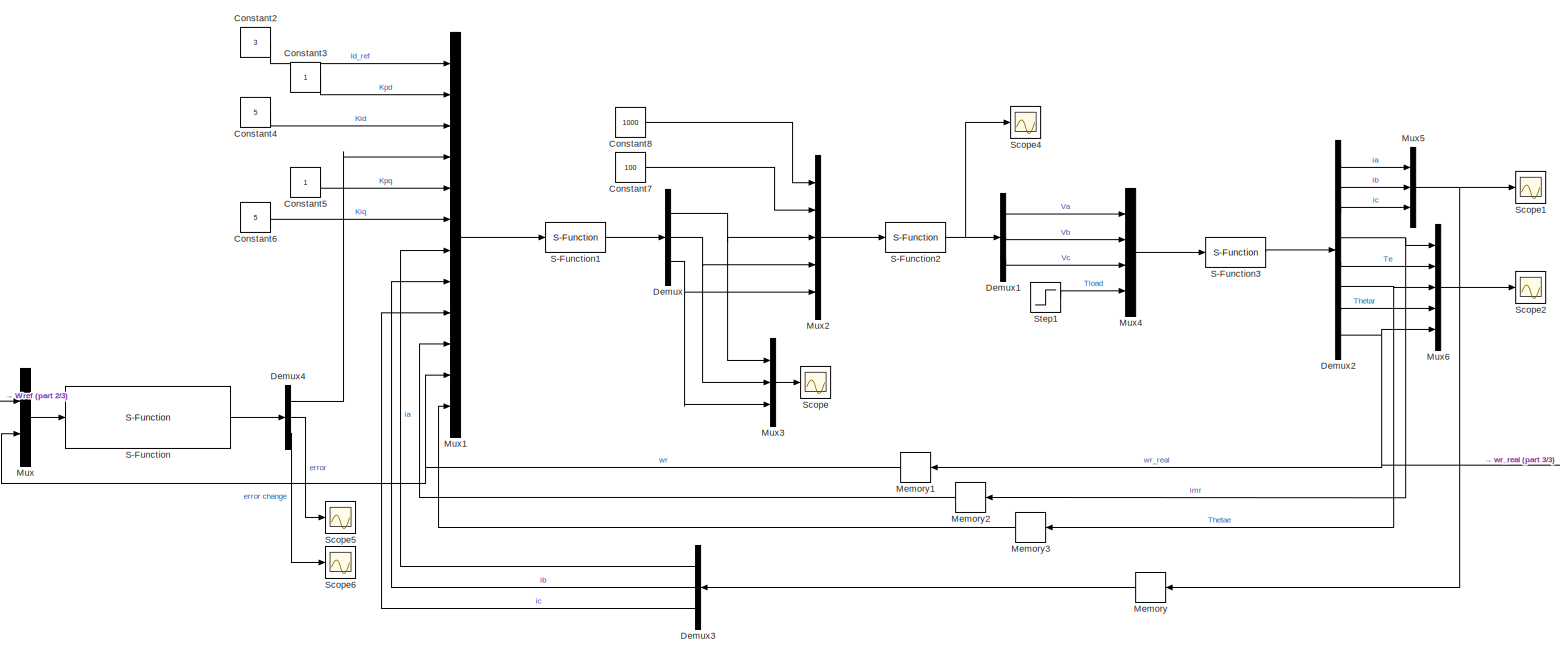
[diagram: root canvas - part 1/3, most of the canvas]
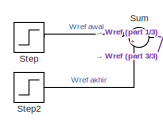
[diagram: root canvas - part 2/3, middle left region]
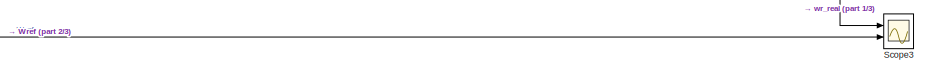
[diagram: root canvas - part 3/3, bottom right region]
MODEL slx_605c80f4d5b9
KIND model
CONFIG AbsTol = auto
CONFIG EnableMultiTasking = off
CONFIG FixedStep = auto
CONFIG MaxStep = auto
CONFIG MinStep = auto
CONFIG RelTol = 1e-3
CONFIG SampleTimeConstraint = Unconstrained
CONFIG Solver = VariableStepAuto
CONFIG SolverName = VariableStepAuto
CONFIG StartTime = 0.0
CONFIG StopTime = 10
BLOCK [Constant] Constant2
  Value = 3
BLOCK [Constant] Constant3
BLOCK [Constant] Constant4
  Value = 5
BLOCK [Constant] Constant5
BLOCK [Constant] Constant6
  Value = 5
BLOCK [Constant] Constant7
  Value = 100
BLOCK [Constant] Constant8
  Value = 1000
BLOCK [Demux] Demux
  DisplayOption = bar
  Outputs = 3
  Ports = [1, 3]
BLOCK [Demux] Demux1
  DisplayOption = bar
  Outputs = 3
  Ports = [1, 3]
BLOCK [Demux] Demux2
  DisplayOption = bar
  Outputs = 8
  Ports = [1, 8]
BLOCK [Demux] Demux3
  DisplayOption = bar
  Outputs = 3
  Ports = [1, 3]
BLOCK [Demux] Demux4
  DisplayOption = bar
  Outputs = 3
  Ports = [1, 3]
BLOCK [Memory] Memory
BLOCK [Memory] Memory1
BLOCK [Memory] Memory2
BLOCK [Memory] Memory3
BLOCK [Mux] Mux
  DisplayOption = bar
  Inputs = 2
  Ports = [2, 1]
BLOCK [Mux] Mux1
  DisplayOption = bar
  Inputs = 12
  Ports = [12, 1]
BLOCK [Mux] Mux2
  DisplayOption = bar
  Inputs = 5
  Ports = [5, 1]
BLOCK [Mux] Mux3
  DisplayOption = bar
  Inputs = 3
  Ports = [3, 1]
BLOCK [Mux] Mux4
  DisplayOption = bar
  Ports = [4, 1]
BLOCK [Mux] Mux5
  DisplayOption = bar
  Inputs = 3
  Ports = [3, 1]
BLOCK [Mux] Mux6
  DisplayOption = bar
  Inputs = 5
  Ports = [5, 1]
BLOCK [S-Function] S-Function
  EnableBusSupport = off
  FunctionName = FUZZY9
  Ports = [1, 1]
  SFcnIsStateOwnerBlock = off
  SFunctionDeploymentMode = off
BLOCK [S-Function] S-Function1
  EnableBusSupport = off
  FunctionName = RFOC_IM
  Ports = [1, 1]
  SFcnIsStateOwnerBlock = off
  SFunctionDeploymentMode = off
BLOCK [S-Function] S-Function2
  EnableBusSupport = off
  FunctionName = PWM
  Ports = [1, 1]
  SFcnIsStateOwnerBlock = off
  SFunctionDeploymentMode = off
BLOCK [S-Function] S-Function3
  EnableBusSupport = off
  FunctionName = IM
  Ports = [1, 1]
  SFcnIsStateOwnerBlock = off
  SFunctionDeploymentMode = off
BLOCK [Scope] Scope
  Floating = off
  NumInputPorts = 1
  Ports = [1]
  ScopeSpecificationString = Simulink.scopes.TimeScopeBlockCfg('CurrentConfiguration', extmgr.ConfigurationSet(extmgr.Configuration('Core','General UI',true),extmgr.Configuration('Core','Source UI',true),extmgr.Configuration('Sources','WiredSimulink',true,'DataLoggingVariableName','ScopeData1'),extmgr.Configuration('Visuals','Time Domain',true,'SerializedDisplays',{struct('MinYLimReal','-26.96181','MaxYLimReal','26.98838','YL...<+1421ch>
BLOCK [Scope] Scope1
  Floating = off
  NumInputPorts = 1
  Ports = [1]
  ScopeSpecificationString = Simulink.scopes.TimeScopeBlockCfg('CurrentConfiguration', extmgr.ConfigurationSet(extmgr.Configuration('Core','General UI',true),extmgr.Configuration('Core','Source UI',true),extmgr.Configuration('Sources','WiredSimulink',true,'DataLoggingVariableName','ScopeData2'),extmgr.Configuration('Visuals','Time Domain',true,'SerializedDisplays',{struct('MinYLimReal','-1.00000','MaxYLimReal','1.00000','YLab...<+1371ch>
BLOCK [Scope] Scope2
  Floating = off
  NumInputPorts = 1
  Ports = [1]
  ScopeSpecificationString = Simulink.scopes.TimeScopeBlockCfg('CurrentConfiguration', extmgr.ConfigurationSet(extmgr.Configuration('Core','General UI',true),extmgr.Configuration('Core','Source UI',true),extmgr.Configuration('Sources','WiredSimulink',true,'DataLoggingVariableName','ScopeData3'),extmgr.Configuration('Visuals','Time Domain',true,'SerializedDisplays',{struct('MinYLimReal','-19.90233','MaxYLimReal','27.80017','YL...<+1443ch>
BLOCK [Scope] Scope3
  Floating = off
  NumInputPorts = 2
  Ports = [2]
  ScopeSpecificationString = Simulink.scopes.TimeScopeBlockCfg('CurrentConfiguration', extmgr.ConfigurationSet(extmgr.Configuration('Core','General UI',true),extmgr.Configuration('Core','Source UI',true),extmgr.Configuration('Sources','WiredSimulink',true,'DataLoggingVariableName','ScopeData4'),extmgr.Configuration('Visuals','Time Domain',true,'SerializedDisplays',{struct('MinYLimReal','-12.56054','MaxYLimReal','12.56574','YL...<+1860ch>
BLOCK [Scope] Scope4
  Floating = off
  NumInputPorts = 1
  Ports = [1]
  ScopeSpecificationString = Simulink.scopes.TimeScopeBlockCfg('CurrentConfiguration', extmgr.ConfigurationSet(extmgr.Configuration('Core','General UI',true),extmgr.Configuration('Core','Source UI',true),extmgr.Configuration('Sources','WiredSimulink',true),extmgr.Configuration('Visuals','Time Domain',true,'SerializedDisplays',{struct('MinYLimReal','-62.5','MaxYLimReal','62.5','YLabelReal','','MinYLimMag','0.00000','MaxYLimMag...<+1347ch>
BLOCK [Scope] Scope5
  Floating = off
  NumInputPorts = 1
  Ports = [1]
  ScopeSpecificationString = Simulink.scopes.TimeScopeBlockCfg('CurrentConfiguration', extmgr.ConfigurationSet(extmgr.Configuration('Core','General UI',true),extmgr.Configuration('Core','Source UI',true),extmgr.Configuration('Sources','WiredSimulink',true,'DataLoggingVariableName','ScopeData5'),extmgr.Configuration('Visuals','Time Domain',true,'SerializedDisplays',{struct('MinYLimReal','-2.34295','MaxYLimReal','1.39243','YLab...<+1393ch>
BLOCK [Scope] Scope6
  Floating = off
  NumInputPorts = 1
  Ports = [1]
  ScopeSpecificationString = Simulink.scopes.TimeScopeBlockCfg('CurrentConfiguration', extmgr.ConfigurationSet(extmgr.Configuration('Core','General UI',true),extmgr.Configuration('Core','Source UI',true),extmgr.Configuration('Sources','WiredSimulink',true,'DataLoggingVariableName','ScopeData6'),extmgr.Configuration('Visuals','Time Domain',true,'SerializedDisplays',{struct('MinYLimReal','-2.36699','MaxYLimReal','1.37992','YLab...<+1402ch>
BLOCK [Step] Step
  After = 10
  SampleTime = 0
BLOCK [Step] Step1
  After = 0
  SampleTime = 0
  Time = 3
BLOCK [Step] Step2
  After = -20
  SampleTime = 0
  Time = 5
BLOCK [Sum] Sum
  IconShape = round
  InputSameDT = off
  Inputs = |++
  OutDataTypeStr = Inherit: Inherit via internal rule
  Ports = [2, 1]
  SaturateOnIntegerOverflow = off
LINE Constant2:1 -> Mux1:1
LINE Constant3:1 -> Mux1:2
LINE Constant4:1 -> Mux1:3
LINE Constant5:1 -> Mux1:5
LINE Constant6:1 -> Mux1:6
LINE Constant7:1 -> Mux2:2
LINE Constant8:1 -> Mux2:1
LINE Demux1:1 -> Mux4:1
LINE Demux1:2 -> Mux4:2
LINE Demux1:3 -> Mux4:3
LINE Demux2:1 -> Mux5:1
LINE Demux2:2 -> Mux5:2
LINE Demux2:3 -> Mux5:3
NET Demux2:4 -> Memory2:1, Mux6:1
LINE Demux2:5 -> Mux6:2
NET Demux2:6 -> Memory3:1, Mux6:3
LINE Demux2:7 -> Mux6:4
NET Demux2:8 -> Memory1:1, Mux6:5, Scope3:1
LINE Demux3:1 -> Mux1:7
LINE Demux3:2 -> Mux1:8
LINE Demux3:3 -> Mux1:9
LINE Demux4:1 -> Mux1:4
LINE Demux4:2 -> Scope5:1
LINE Demux4:3 -> Scope6:1
NET Demux:1 -> Mux2:3, Mux3:1
NET Demux:2 -> Mux2:4, Mux3:2
NET Demux:3 -> Mux2:5, Mux3:3
NET Memory1:1 -> Mux1:11, Mux:2
LINE Memory2:1 -> Mux1:10
LINE Memory3:1 -> Mux1:12
LINE Memory:1 -> Demux3:1
LINE Mux1:1 -> S-Function1:1
LINE Mux2:1 -> S-Function2:1
LINE Mux3:1 -> Scope:1
LINE Mux4:1 -> S-Function3:1
NET Mux5:1 -> Memory:1, Scope1:1
LINE Mux6:1 -> Scope2:1
LINE Mux:1 -> S-Function:1
LINE S-Function1:1 -> Demux:1
NET S-Function2:1 -> Demux1:1, Scope4:1
LINE S-Function3:1 -> Demux2:1
LINE S-Function:1 -> Demux4:1
LINE Step1:1 -> Mux4:4
LINE Step2:1 -> Sum:2
LINE Step:1 -> Sum:1
NET Sum:1 -> Mux:1, Scope3:2
note: NET lines group one-source signal fan-out (src -> all destinations, sorted); 1:1 wires keep LINE
